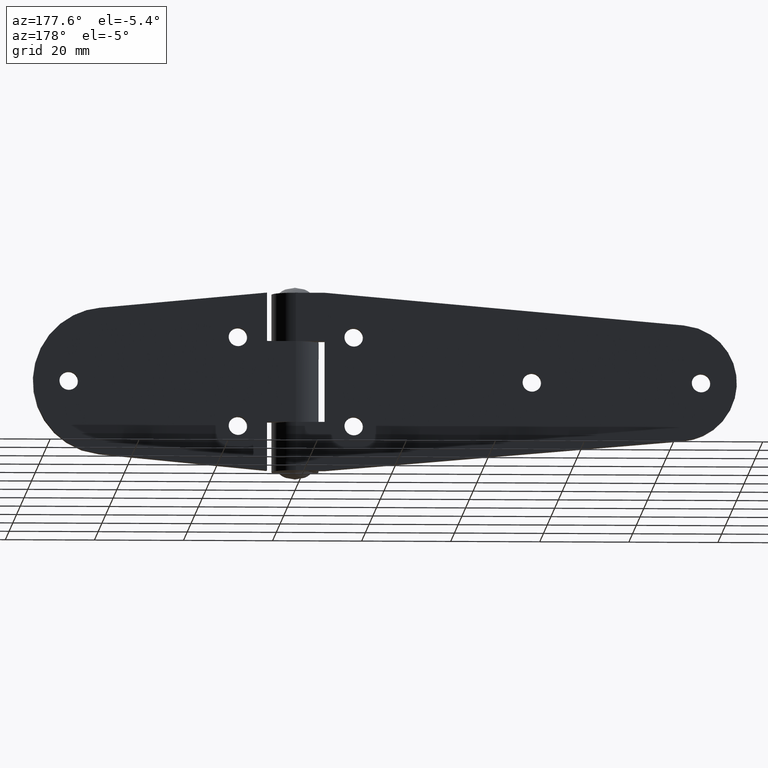
[diagram: clean part render]
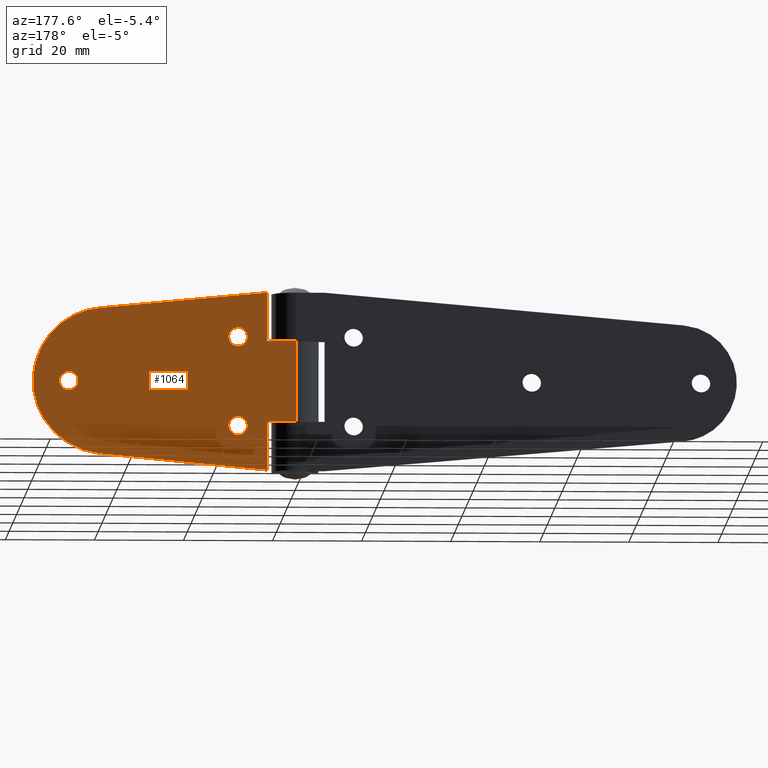
[diagram: same view with one face highlighted and labeled with its STEP entity id]
A machine part, auxiliary view. The second image highlights one B-rep face of the part: STEP entity #1064.
In plain terms, the highlighted face is a freeform B-spline surface patch.
Its self-contained STEP definition (entity closure, byte-faithful):
#79=CARTESIAN_POINT('',(10.906473599267390,5.299998000000000,30.164764102387469));
#80=VERTEX_POINT('',#79);
#86=CARTESIAN_POINT('',(13.0,5.299998000000000,32.099999999999987));
#87=VERTEX_POINT('',#86);
#88=CARTESIAN_POINT('',(13.0,5.299998000000000,32.099999999999987));
#89=CARTESIAN_POINT('',(11.058779970045816,5.299998000000000,32.099999999999987));
#90=CARTESIAN_POINT('',(10.906473599267390,5.299998000000000,30.164764102387476));
#98=(BOUNDED_CURVE()B_SPLINE_CURVE(2,(#88,#89,#90),.UNSPECIFIED.,.F.,.U.)B_SPLINE_CURVE_WITH_KNOTS((3,3),(0.0,0.236331300410209),.UNSPECIFIED.)CURVE()GEOMETRIC_REPRESENTATION_ITEM()RATIONAL_B_SPLINE_CURVE((1.0,0.723120658865940,0.969723355707354))REPRESENTATION_ITEM(''));
#99=EDGE_CURVE('',#87,#80,#98,.T.);
#101=CARTESIAN_POINT('',(15.093526400732610,5.299998000000000,29.835235897612531));
#102=VERTEX_POINT('',#101);
#103=CARTESIAN_POINT('',(15.093526400732614,5.299998000000000,29.835235897612531));
#104=CARTESIAN_POINT('',(15.099999999999996,5.299998000000000,29.917490773918583));
#105=CARTESIAN_POINT('',(15.100000000000000,5.299998000000000,30.0));
#106=CARTESIAN_POINT('',(15.100000000000001,5.299998000000000,32.099999999999987));
#107=CARTESIAN_POINT('',(13.0,5.299998000000000,32.099999999999987));
#115=(BOUNDED_CURVE()B_SPLINE_CURVE(2,(#103,#104,#105,#106,#107),.UNSPECIFIED.,.F.,.U.)B_SPLINE_CURVE_WITH_KNOTS((3,2,3),(0.736331300410209,0.750000000000000,1.0),.UNSPECIFIED.)CURVE()GEOMETRIC_REPRESENTATION_ITEM()RATIONAL_B_SPLINE_CURVE((0.969723355707355,0.983986122320608,1.0,0.707106781186548,1.0))REPRESENTATION_ITEM(''));
#116=EDGE_CURVE('',#102,#87,#115,.T.);
#192=CARTESIAN_POINT('',(13.0,5.299998000000000,27.899999999999999));
#193=VERTEX_POINT('',#192);
#194=CARTESIAN_POINT('',(13.0,5.299998000000000,27.899999999999999));
#195=CARTESIAN_POINT('',(14.941220029954183,5.299998000000000,27.900000000000002));
#196=CARTESIAN_POINT('',(15.093526400732614,5.299998000000000,29.835235897612527));
#204=(BOUNDED_CURVE()B_SPLINE_CURVE(2,(#194,#195,#196),.UNSPECIFIED.,.F.,.U.)B_SPLINE_CURVE_WITH_KNOTS((3,3),(0.500000000000000,0.736331300410209),.UNSPECIFIED.)CURVE()GEOMETRIC_REPRESENTATION_ITEM()RATIONAL_B_SPLINE_CURVE((1.0,0.723120658865940,0.969723355707353))REPRESENTATION_ITEM(''));
#205=EDGE_CURVE('',#193,#102,#204,.T.);
#207=CARTESIAN_POINT('',(10.906473599267391,5.299998000000000,30.164764102387469));
#208=CARTESIAN_POINT('',(10.900000000000004,5.299998000000000,30.082509226081410));
#209=CARTESIAN_POINT('',(10.900000000000000,5.299998000000000,30.0));
#210=CARTESIAN_POINT('',(10.900000000000000,5.299998000000000,27.900000000000002));
#211=CARTESIAN_POINT('',(13.0,5.299998000000000,27.899999999999999));
#219=(BOUNDED_CURVE()B_SPLINE_CURVE(2,(#207,#208,#209,#210,#211),.UNSPECIFIED.,.F.,.U.)B_SPLINE_CURVE_WITH_KNOTS((3,2,3),(0.236331300410209,0.250000000000000,0.500000000000000),.UNSPECIFIED.)CURVE()GEOMETRIC_REPRESENTATION_ITEM()RATIONAL_B_SPLINE_CURVE((0.969723355707354,0.983986122320608,1.0,0.707106781186548,1.0))REPRESENTATION_ITEM(''));
#220=EDGE_CURVE('',#80,#193,#219,.T.);
#261=CARTESIAN_POINT('',(10.906473599267390,5.299998000000000,10.164764102387471));
#262=VERTEX_POINT('',#261);
#268=CARTESIAN_POINT('',(13.0,5.299998000000000,12.100000000000000));
#269=VERTEX_POINT('',#268);
#270=CARTESIAN_POINT('',(13.0,5.299998000000000,12.100000000000000));
#271=CARTESIAN_POINT('',(11.058779970045814,5.299998000000001,12.099999999999998));
#272=CARTESIAN_POINT('',(10.906473599267390,5.299998000000000,10.164764102387473));
#280=(BOUNDED_CURVE()B_SPLINE_CURVE(2,(#270,#271,#272),.UNSPECIFIED.,.F.,.U.)B_SPLINE_CURVE_WITH_KNOTS((3,3),(0.0,0.236331300410209),.UNSPECIFIED.)CURVE()GEOMETRIC_REPRESENTATION_ITEM()RATIONAL_B_SPLINE_CURVE((1.0,0.723120658865939,0.969723355707354))REPRESENTATION_ITEM(''));
#281=EDGE_CURVE('',#269,#262,#280,.T.);
#283=CARTESIAN_POINT('',(15.093526400732610,5.299998000000000,9.835235897612527));
#284=VERTEX_POINT('',#283);
#285=CARTESIAN_POINT('',(15.093526400732610,5.299998000000000,9.835235897612527));
#286=CARTESIAN_POINT('',(15.100000000000000,5.299998000000000,9.917490773918589));
#287=CARTESIAN_POINT('',(15.100000000000000,5.299998000000000,10.0));
#288=CARTESIAN_POINT('',(15.100000000000001,5.299998000000000,12.099999999999998));
#289=CARTESIAN_POINT('',(13.0,5.299998000000000,12.100000000000000));
#297=(BOUNDED_CURVE()B_SPLINE_CURVE(2,(#285,#286,#287,#288,#289),.UNSPECIFIED.,.F.,.U.)B_SPLINE_CURVE_WITH_KNOTS((3,2,3),(0.736331300410209,0.750000000000000,1.0),.UNSPECIFIED.)CURVE()GEOMETRIC_REPRESENTATION_ITEM()RATIONAL_B_SPLINE_CURVE((0.969723355707354,0.983986122320608,1.0,0.707106781186548,1.0))REPRESENTATION_ITEM(''));
#298=EDGE_CURVE('',#284,#269,#297,.T.);
#374=CARTESIAN_POINT('',(13.0,5.299998000000000,7.900000000000000));
#375=VERTEX_POINT('',#374);
#376=CARTESIAN_POINT('',(13.0,5.299998000000000,7.900000000000000));
#377=CARTESIAN_POINT('',(14.941220029954183,5.299998000000000,7.900000000000000));
#378=CARTESIAN_POINT('',(15.093526400732614,5.299998000000000,9.835235897612527));
#386=(BOUNDED_CURVE()B_SPLINE_CURVE(2,(#376,#377,#378),.UNSPECIFIED.,.F.,.U.)B_SPLINE_CURVE_WITH_KNOTS((3,3),(0.500000000000000,0.736331300410209),.UNSPECIFIED.)CURVE()GEOMETRIC_REPRESENTATION_ITEM()RATIONAL_B_SPLINE_CURVE((1.0,0.723120658865940,0.969723355707353))REPRESENTATION_ITEM(''));
#387=EDGE_CURVE('',#375,#284,#386,.T.);
#389=CARTESIAN_POINT('',(10.906473599267390,5.299998000000000,10.164764102387473));
#390=CARTESIAN_POINT('',(10.900000000000002,5.299998000000001,10.082509226081408));
#391=CARTESIAN_POINT('',(10.900000000000000,5.299998000000000,10.0));
#392=CARTESIAN_POINT('',(10.900000000000000,5.299998000000000,7.900000000000000));
#393=CARTESIAN_POINT('',(13.0,5.299998000000000,7.900000000000000));
#401=(BOUNDED_CURVE()B_SPLINE_CURVE(2,(#389,#390,#391,#392,#393),.UNSPECIFIED.,.F.,.U.)B_SPLINE_CURVE_WITH_KNOTS((3,2,3),(0.236331300410209,0.250000000000000,0.500000000000000),.UNSPECIFIED.)CURVE()GEOMETRIC_REPRESENTATION_ITEM()RATIONAL_B_SPLINE_CURVE((0.969723355707354,0.983986122320608,1.0,0.707106781186548,1.0))REPRESENTATION_ITEM(''));
#402=EDGE_CURVE('',#262,#375,#401,.T.);
#443=CARTESIAN_POINT('',(48.906473599267393,5.299998000000000,20.164764102387469));
#444=VERTEX_POINT('',#443);
#450=CARTESIAN_POINT('',(51.0,5.299998000000000,22.100000000000001));
#451=VERTEX_POINT('',#450);
#452=CARTESIAN_POINT('',(51.0,5.299998000000000,22.100000000000001));
#453=CARTESIAN_POINT('',(49.058779970045798,5.299998000000001,22.099999999999998));
#454=CARTESIAN_POINT('',(48.906473599267386,5.299998000000000,20.164764102387466));
#462=(BOUNDED_CURVE()B_SPLINE_CURVE(2,(#452,#453,#454),.UNSPECIFIED.,.F.,.U.)B_SPLINE_CURVE_WITH_KNOTS((3,3),(0.0,0.236331300410210),.UNSPECIFIED.)CURVE()GEOMETRIC_REPRESENTATION_ITEM()RATIONAL_B_SPLINE_CURVE((1.0,0.723120658865939,0.969723355707355))REPRESENTATION_ITEM(''));
#463=EDGE_CURVE('',#451,#444,#462,.T.);
#465=CARTESIAN_POINT('',(53.093526400732607,5.299998000000001,19.835235897612531));
#466=VERTEX_POINT('',#465);
#467=CARTESIAN_POINT('',(53.093526400732614,5.299998000000001,19.835235897612524));
#468=CARTESIAN_POINT('',(53.099999999999994,5.299998000000000,19.917490773918598));
#469=CARTESIAN_POINT('',(53.099999999999987,5.299998000000000,20.0));
#470=CARTESIAN_POINT('',(53.099999999999987,5.299998000000000,22.099999999999998));
#471=CARTESIAN_POINT('',(51.0,5.299998000000000,22.100000000000001));
#479=(BOUNDED_CURVE()B_SPLINE_CURVE(2,(#467,#468,#469,#470,#471),.UNSPECIFIED.,.F.,.U.)B_SPLINE_CURVE_WITH_KNOTS((3,2,3),(0.736331300410209,0.750000000000000,1.0),.UNSPECIFIED.)CURVE()GEOMETRIC_REPRESENTATION_ITEM()RATIONAL_B_SPLINE_CURVE((0.969723355707355,0.983986122320608,1.0,0.707106781186548,1.0))REPRESENTATION_ITEM(''));
#480=EDGE_CURVE('',#466,#451,#479,.T.);
#556=CARTESIAN_POINT('',(51.0,5.299998000000000,17.899999999999999));
#557=VERTEX_POINT('',#556);
#558=CARTESIAN_POINT('',(51.0,5.299998000000000,17.899999999999999));
#559=CARTESIAN_POINT('',(52.941220029954181,5.299998000000000,17.900000000000002));
#560=CARTESIAN_POINT('',(53.093526400732614,5.299998000000001,19.835235897612524));
#568=(BOUNDED_CURVE()B_SPLINE_CURVE(2,(#558,#559,#560),.UNSPECIFIED.,.F.,.U.)B_SPLINE_CURVE_WITH_KNOTS((3,3),(0.500000000000000,0.736331300410209),.UNSPECIFIED.)CURVE()GEOMETRIC_REPRESENTATION_ITEM()RATIONAL_B_SPLINE_CURVE((1.0,0.723120658865940,0.969723355707353))REPRESENTATION_ITEM(''));
#569=EDGE_CURVE('',#557,#466,#568,.T.);
#571=CARTESIAN_POINT('',(48.906473599267386,5.299998000000001,20.164764102387469));
#572=CARTESIAN_POINT('',(48.899999999999999,5.299998000000000,20.082509226081406));
#573=CARTESIAN_POINT('',(48.899999999999999,5.299998000000000,20.0));
#574=CARTESIAN_POINT('',(48.899999999999999,5.299998000000000,17.899999999999999));
#575=CARTESIAN_POINT('',(51.0,5.299998000000000,17.899999999999999));
#583=(BOUNDED_CURVE()B_SPLINE_CURVE(2,(#571,#572,#573,#574,#575),.UNSPECIFIED.,.F.,.U.)B_SPLINE_CURVE_WITH_KNOTS((3,2,3),(0.236331300410209,0.250000000000000,0.500000000000000),.UNSPECIFIED.)CURVE()GEOMETRIC_REPRESENTATION_ITEM()RATIONAL_B_SPLINE_CURVE((0.969723355707355,0.983986122320609,1.0,0.707106781186548,1.0))REPRESENTATION_ITEM(''));
#584=EDGE_CURVE('',#444,#557,#583,.T.);
#595=CARTESIAN_POINT('',(6.500000000000000,5.299998000000000,0.0));
#596=VERTEX_POINT('',#595);
#597=CARTESIAN_POINT('',(44.062942999999997,5.299998000000000,3.574187999999905));
#598=VERTEX_POINT('',#597);
#599=CARTESIAN_POINT('',(6.500000000000000,5.299998000000000,0.0));
#600=CARTESIAN_POINT('',(44.062942999999997,5.299998000000000,3.574187999999905));
#601=QUASI_UNIFORM_CURVE('',1,(#599,#600),.UNSPECIFIED.,.F.,.U.);
#602=EDGE_CURVE('',#596,#598,#601,.T.);
#631=CARTESIAN_POINT('',(44.082909003849402,5.299998000000000,36.423897195414149));
#632=VERTEX_POINT('',#631);
#633=CARTESIAN_POINT('',(6.500000000000000,5.299998000000000,39.999985000000002));
#634=VERTEX_POINT('',#633);
#635=CARTESIAN_POINT('',(44.082909003849402,5.299998000000000,36.423897195414149));
#636=CARTESIAN_POINT('',(6.500000000000000,5.299998000000000,39.999985000000002));
#637=QUASI_UNIFORM_CURVE('',1,(#635,#636),.UNSPECIFIED.,.F.,.U.);
#638=EDGE_CURVE('',#632,#634,#637,.T.);
#680=CARTESIAN_POINT('',(44.062942999999997,5.299998000000000,3.574187999999905));
#681=CARTESIAN_POINT('',(58.990882922855064,5.299998000000000,4.994606130919656));
#682=CARTESIAN_POINT('',(58.999997082359641,5.299998000000000,19.989969827318589));
#683=CARTESIAN_POINT('',(59.009111241864183,5.299998000000000,34.985333523717529));
#684=CARTESIAN_POINT('',(44.082909003849402,5.299998000000000,36.423897195414149));
#692=(BOUNDED_CURVE()B_SPLINE_CURVE(2,(#680,#681,#682,#683,#684),.UNSPECIFIED.,.F.,.U.)B_SPLINE_CURVE_WITH_KNOTS((3,2,3),(0.0,0.500000000000000,1.0),.UNSPECIFIED.)CURVE()GEOMETRIC_REPRESENTATION_ITEM()RATIONAL_B_SPLINE_CURVE((1.0,0.740043531936631,1.0,0.740043531936631,1.0))REPRESENTATION_ITEM(''));
#693=EDGE_CURVE('',#598,#632,#692,.T.);
#722=CARTESIAN_POINT('',(7.105427E-015,5.299998000000000,10.900009000000100));
#723=VERTEX_POINT('',#722);
#743=CARTESIAN_POINT('',(6.500000000000000,5.299998000000000,10.900009000000100));
#744=VERTEX_POINT('',#743);
#745=CARTESIAN_POINT('',(6.500000000000000,5.299998000000000,10.900009000000100));
#746=CARTESIAN_POINT('',(7.105427E-015,5.299998000000000,10.900009000000100));
#747=QUASI_UNIFORM_CURVE('',1,(#745,#746),.UNSPECIFIED.,.F.,.U.);
#748=EDGE_CURVE('',#744,#723,#747,.T.);
#804=CARTESIAN_POINT('',(6.500000000000000,5.299998000000000,0.0));
#805=CARTESIAN_POINT('',(6.500000000000000,5.299998000000000,10.900009000000100));
#806=QUASI_UNIFORM_CURVE('',1,(#804,#805),.UNSPECIFIED.,.F.,.U.);
#807=EDGE_CURVE('',#596,#744,#806,.T.);
#818=CARTESIAN_POINT('',(7.105427E-015,5.299998000000000,29.099990999999900));
#819=VERTEX_POINT('',#818);
#876=CARTESIAN_POINT('',(6.500000000000000,5.299998000000000,29.099990999999900));
#877=VERTEX_POINT('',#876);
#883=CARTESIAN_POINT('',(6.500000000000000,5.299998000000000,29.099990999999900));
#884=CARTESIAN_POINT('',(7.105427E-015,5.299998000000000,29.099990999999900));
#885=QUASI_UNIFORM_CURVE('',1,(#883,#884),.UNSPECIFIED.,.F.,.U.);
#886=EDGE_CURVE('',#877,#819,#885,.T.);
#902=CARTESIAN_POINT('',(6.500000000000000,5.299998000000000,39.999985000000002));
#903=CARTESIAN_POINT('',(6.500000000000000,5.299998000000000,29.099990999999900));
#904=QUASI_UNIFORM_CURVE('',1,(#902,#903),.UNSPECIFIED.,.F.,.U.);
#905=EDGE_CURVE('',#634,#877,#904,.T.);
#989=CARTESIAN_POINT('',(7.105427E-015,5.299998000000000,29.099990999999900));
#990=CARTESIAN_POINT('',(7.105427E-015,5.299998000000000,10.900009000000100));
#991=QUASI_UNIFORM_CURVE('',1,(#989,#990),.UNSPECIFIED.,.F.,.U.);
#992=EDGE_CURVE('',#819,#723,#991,.T.);
#1031=CARTESIAN_POINT('',(-2.947049529195723,5.299998000000000,-1.997999173222268));
#1032=CARTESIAN_POINT('',(-2.947049529195723,5.299998000000000,41.997985246105472));
#1033=CARTESIAN_POINT('',(61.947043975546293,5.299998000000000,-1.997999173222268));
#1034=CARTESIAN_POINT('',(61.947043975546293,5.299998000000000,41.997985246105472));
#1035=B_SPLINE_SURFACE_WITH_KNOTS('',1,1,((#1031,#1033),(#1032,#1034)),.UNSPECIFIED.,.F.,.F.,.U.,(2,2),(2,2),(0.0,43.995984419327741),(0.0,64.894093504742017),.UNSPECIFIED.);
#1036=ORIENTED_EDGE('',*,*,#638,.F.);
#1037=ORIENTED_EDGE('',*,*,#693,.F.);
#1038=ORIENTED_EDGE('',*,*,#602,.F.);
#1039=ORIENTED_EDGE('',*,*,#807,.T.);
#1040=ORIENTED_EDGE('',*,*,#748,.T.);
#1041=ORIENTED_EDGE('',*,*,#992,.F.);
#1042=ORIENTED_EDGE('',*,*,#886,.F.);
#1043=ORIENTED_EDGE('',*,*,#905,.F.);
#1044=EDGE_LOOP('',(#1036,#1037,#1038,#1039,#1040,#1041,#1042,#1043));
#1045=FACE_OUTER_BOUND('',#1044,.T.);
#1046=ORIENTED_EDGE('',*,*,#569,.T.);
#1047=ORIENTED_EDGE('',*,*,#480,.T.);
#1048=ORIENTED_EDGE('',*,*,#463,.T.);
#1049=ORIENTED_EDGE('',*,*,#584,.T.);
#1050=EDGE_LOOP('',(#1046,#1047,#1048,#1049));
#1051=FACE_BOUND('',#1050,.T.);
#1052=ORIENTED_EDGE('',*,*,#387,.T.);
#1053=ORIENTED_EDGE('',*,*,#298,.T.);
#1054=ORIENTED_EDGE('',*,*,#281,.T.);
#1055=ORIENTED_EDGE('',*,*,#402,.T.);
#1056=EDGE_LOOP('',(#1052,#1053,#1054,#1055));
#1057=FACE_BOUND('',#1056,.T.);
#1058=ORIENTED_EDGE('',*,*,#205,.T.);
#1059=ORIENTED_EDGE('',*,*,#116,.T.);
#1060=ORIENTED_EDGE('',*,*,#99,.T.);
#1061=ORIENTED_EDGE('',*,*,#220,.T.);
#1062=EDGE_LOOP('',(#1058,#1059,#1060,#1061));
#1063=FACE_BOUND('',#1062,.T.);
#1064=ADVANCED_FACE('',(#1045,#1051,#1057,#1063),#1035,.T.);